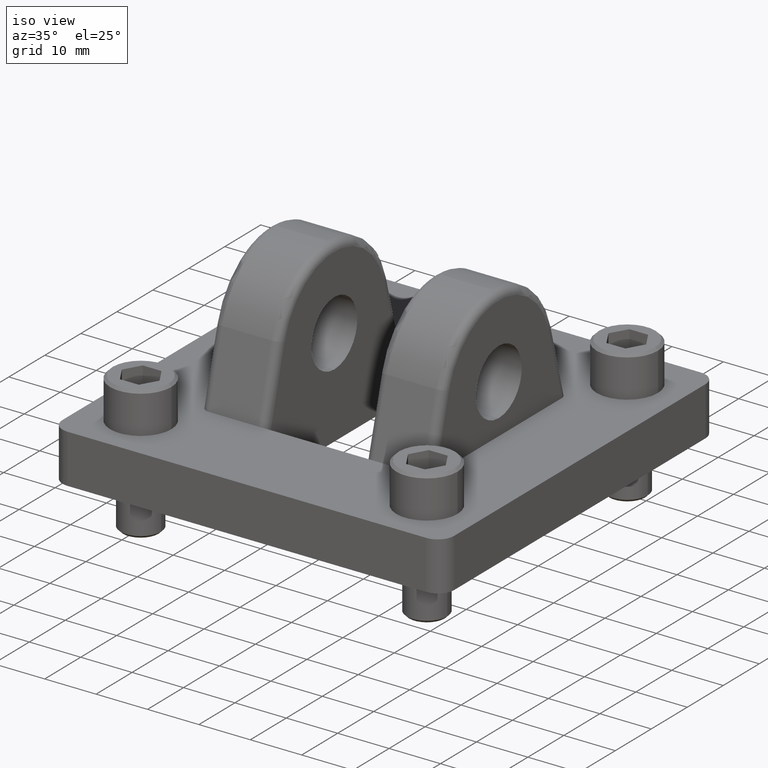
[diagram: clean part render]
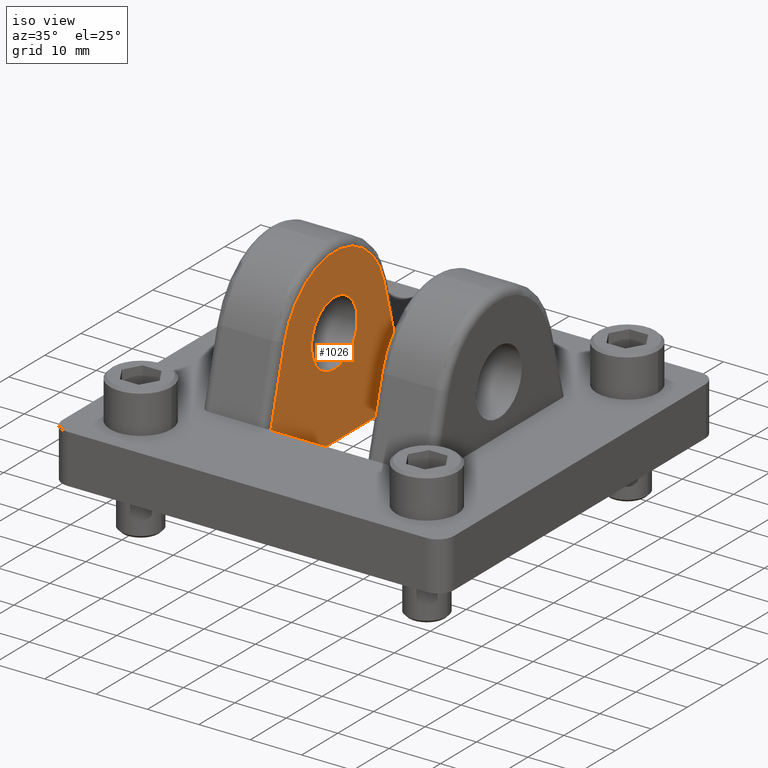
[diagram: same view with one face highlighted and labeled with its STEP entity id]
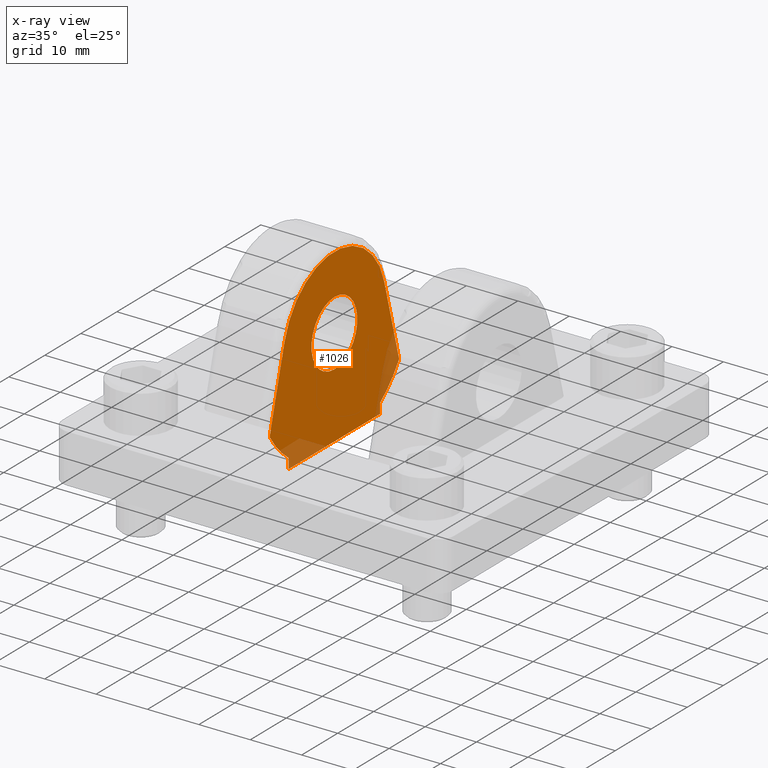
[diagram: x-ray of the same camera — body ghosted, the highlighted face saturated]
A machine part, iso view. The second image highlights one B-rep face of the part: STEP entity #1026.
The next image is the same camera in x-ray: the body ghosted, the highlighted face saturated — about 8% of this face is hidden behind the body in this view.
In plain terms, the highlighted planar face has unit normal (1, 0, 0).
Its self-contained STEP definition (entity closure, byte-faithful):
#41 = AXIS2_PLACEMENT_3D ( 'NONE', #1272, #1619, #3141 ) ;
#42 = ORIENTED_EDGE ( 'NONE', *, *, #1100, .T. ) ;
#190 = DIRECTION ( 'NONE',  ( 1.000000000000000000, 0.0000000000000000000, 0.0000000000000000000 ) ) ;
#228 = LINE ( 'NONE', #3538, #1303 ) ;
#330 = EDGE_CURVE ( 'NONE', #573, #2914, #2183, .T. ) ;
#333 = AXIS2_PLACEMENT_3D ( 'NONE', #1998, #566, #2821 ) ;
#382 = VERTEX_POINT ( 'NONE', #1976 ) ;
#424 = DIRECTION ( 'NONE',  ( 0.0000000000000000000, 0.0000000000000000000, -1.000000000000000000 ) ) ;
#444 = CIRCLE ( 'NONE', #333, 0.8385254915624211769 ) ;
#482 = ORIENTED_EDGE ( 'NONE', *, *, #2206, .F. ) ;
#566 = DIRECTION ( 'NONE',  ( 1.000000000000000000, 0.0000000000000000000, 0.0000000000000000000 ) ) ;
#573 = VERTEX_POINT ( 'NONE', #1749 ) ;
#610 = EDGE_LOOP ( 'NONE', ( #2784, #42, #1288, #1660, #3137, #2873, #1693, #1972 ) ) ;
#626 = CARTESIAN_POINT ( 'NONE',  ( -0.3799999999999999489, -0.5000000000000000000, 0.0000000000000000000 ) ) ;
#666 = CARTESIAN_POINT ( 'NONE',  ( -0.3799999999999999489, 0.7080409632690499722, 0.3007751183059469979 ) ) ;
#715 = DIRECTION ( 'NONE',  ( 0.0000000000000000000, -0.2629514606666107923, -0.9648090636666385445 ) ) ;
#726 = VECTOR ( 'NONE', #2264, 39.37007874015748143 ) ;
#737 = LINE ( 'NONE', #1875, #1728 ) ;
#764 = CARTESIAN_POINT ( 'NONE',  ( -0.3799999999999999489, -0.7080409632690498611, 0.3007751183059464428 ) ) ;
#840 = CARTESIAN_POINT ( 'NONE',  ( -0.3799999999999999489, -0.5000000000000000000, 0.07685439910818685216 ) ) ;
#970 = AXIS2_PLACEMENT_3D ( 'NONE', #1736, #2229, #3319 ) ;
#975 = VERTEX_POINT ( 'NONE', #1141 ) ;
#995 = CARTESIAN_POINT ( 'NONE',  ( -0.3799999999999998934, -1.024442997624098707E-16, 0.7499999999999998890 ) ) ;
#1026 = ADVANCED_FACE ( 'NONE', ( #1534, #2648 ), #3205, .T. ) ;
#1034 = DIRECTION ( 'NONE',  ( 1.000000000000000000, 0.0000000000000000000, 0.0000000000000000000 ) ) ;
#1055 = DIRECTION ( 'NONE',  ( 0.0000000000000000000, 0.0000000000000000000, 1.000000000000000000 ) ) ;
#1069 = CARTESIAN_POINT ( 'NONE',  ( -0.3799999999999998934, -1.024442997624098707E-16, 1.000499999999999945 ) ) ;
#1100 = EDGE_CURVE ( 'NONE', #1820, #2572, #737, .T. ) ;
#1141 = CARTESIAN_POINT ( 'NONE',  ( -0.3799999999999999489, 0.5000000000000001110, 0.07685439910818692155 ) ) ;
#1222 = VERTEX_POINT ( 'NONE', #1069 ) ;
#1240 = DIRECTION ( 'NONE',  ( -0.0000000000000000000, -0.0000000000000000000, -1.000000000000000000 ) ) ;
#1247 = CIRCLE ( 'NONE', #970, 0.5650000000000000577 ) ;
#1272 = CARTESIAN_POINT ( 'NONE',  ( -0.3799999999999998934, -1.024442997624098707E-16, 0.7499999999999998890 ) ) ;
#1288 = ORIENTED_EDGE ( 'NONE', *, *, #2734, .T. ) ;
#1298 = DIRECTION ( 'NONE',  ( 0.0000000000000000000, 0.0000000000000000000, -1.000000000000000000 ) ) ;
#1303 = VECTOR ( 'NONE', #715, 39.37007874015748854 ) ;
#1340 = CARTESIAN_POINT ( 'NONE',  ( -0.3799999999999999489, -1.024442997624098707E-16, 0.7499999999999998890 ) ) ;
#1369 = AXIS2_PLACEMENT_3D ( 'NONE', #1340, #190, #1298 ) ;
#1390 = CARTESIAN_POINT ( 'NONE',  ( -0.3799999999999999489, -0.5000000000000000000, 0.0000000000000000000 ) ) ;
#1448 = EDGE_CURVE ( 'NONE', #2914, #975, #2996, .T. ) ;
#1472 = CIRCLE ( 'NONE', #2878, 0.2504999999999999449 ) ;
#1525 = VERTEX_POINT ( 'NONE', #840 ) ;
#1534 = FACE_BOUND ( 'NONE', #1854, .T. ) ;
#1600 = AXIS2_PLACEMENT_3D ( 'NONE', #3236, #2078, #424 ) ;
#1619 = DIRECTION ( 'NONE',  ( 1.000000000000000000, 0.0000000000000000000, 0.0000000000000000000 ) ) ;
#1660 = ORIENTED_EDGE ( 'NONE', *, *, #1929, .T. ) ;
#1693 = ORIENTED_EDGE ( 'NONE', *, *, #330, .T. ) ;
#1728 = VECTOR ( 'NONE', #3457, 39.37007874015748854 ) ;
#1736 = CARTESIAN_POINT ( 'NONE',  ( -0.3799999999999999489, -1.024442997624098707E-16, 0.7499999999999998890 ) ) ;
#1749 = CARTESIAN_POINT ( 'NONE',  ( -0.3799999999999999489, -0.5000000000000000000, 0.0000000000000000000 ) ) ;
#1801 = EDGE_CURVE ( 'NONE', #1525, #573, #2621, .T. ) ;
#1820 = VERTEX_POINT ( 'NONE', #666 ) ;
#1854 = EDGE_LOOP ( 'NONE', ( #482, #3423 ) ) ;
#1868 = DIRECTION ( 'NONE',  ( 0.0000000000000000000, 0.0000000000000000000, -1.000000000000000000 ) ) ;
#1875 = CARTESIAN_POINT ( 'NONE',  ( -0.3799999999999999489, 0.5451171209716509924, 0.8985675752766350000 ) ) ;
#1902 = EDGE_CURVE ( 'NONE', #975, #1820, #2554, .T. ) ;
#1929 = EDGE_CURVE ( 'NONE', #3557, #2889, #228, .T. ) ;
#1972 = ORIENTED_EDGE ( 'NONE', *, *, #1448, .T. ) ;
#1976 = CARTESIAN_POINT ( 'NONE',  ( -0.3799999999999998934, -7.176689744376868531E-17, 0.4994999999999999440 ) ) ;
#1998 = CARTESIAN_POINT ( 'NONE',  ( -0.3799999999999999489, -1.024442997624098707E-16, 0.7499999999999998890 ) ) ;
#2078 = DIRECTION ( 'NONE',  ( 1.000000000000000000, 0.0000000000000000000, 0.0000000000000000000 ) ) ;
#2139 = VECTOR ( 'NONE', #1240, 39.37007874015748143 ) ;
#2183 = LINE ( 'NONE', #1390, #726 ) ;
#2206 = EDGE_CURVE ( 'NONE', #1222, #382, #1472, .T. ) ;
#2229 = DIRECTION ( 'NONE',  ( 1.000000000000000000, 0.0000000000000000000, 0.0000000000000000000 ) ) ;
#2230 = CARTESIAN_POINT ( 'NONE',  ( -0.3799999999999999489, 0.5451171209716507704, 0.8985675752766348889 ) ) ;
#2264 = DIRECTION ( 'NONE',  ( 0.0000000000000000000, 1.000000000000000000, 0.0000000000000000000 ) ) ;
#2370 = CARTESIAN_POINT ( 'NONE',  ( -0.3799999999999999489, 0.5000000000000000000, 0.0000000000000000000 ) ) ;
#2380 = CARTESIAN_POINT ( 'NONE',  ( -0.3799999999999999489, -0.5451171209716507704, 0.8985675752766348889 ) ) ;
#2554 = CIRCLE ( 'NONE', #1369, 0.8385254915624212879 ) ;
#2572 = VERTEX_POINT ( 'NONE', #2230 ) ;
#2621 = LINE ( 'NONE', #626, #2139 ) ;
#2648 = FACE_OUTER_BOUND ( 'NONE', #610, .T. ) ;
#2734 = EDGE_CURVE ( 'NONE', #2572, #3557, #1247, .T. ) ;
#2738 = EDGE_CURVE ( 'NONE', #2889, #1525, #444, .T. ) ;
#2784 = ORIENTED_EDGE ( 'NONE', *, *, #1902, .T. ) ;
#2821 = DIRECTION ( 'NONE',  ( 0.0000000000000000000, 0.0000000000000000000, -1.000000000000000000 ) ) ;
#2829 = VECTOR ( 'NONE', #1055, 39.37007874015748143 ) ;
#2873 = ORIENTED_EDGE ( 'NONE', *, *, #1801, .T. ) ;
#2878 = AXIS2_PLACEMENT_3D ( 'NONE', #995, #1034, #1868 ) ;
#2889 = VERTEX_POINT ( 'NONE', #764 ) ;
#2914 = VERTEX_POINT ( 'NONE', #2370 ) ;
#2996 = LINE ( 'NONE', #3263, #2829 ) ;
#3021 = EDGE_CURVE ( 'NONE', #382, #1222, #3414, .T. ) ;
#3137 = ORIENTED_EDGE ( 'NONE', *, *, #2738, .T. ) ;
#3141 = DIRECTION ( 'NONE',  ( 0.0000000000000000000, 0.0000000000000000000, -1.000000000000000000 ) ) ;
#3205 = PLANE ( 'NONE',  #1600 ) ;
#3236 = CARTESIAN_POINT ( 'NONE',  ( -0.3799999999999999489, -1.024442997624098707E-16, 0.7499999999999998890 ) ) ;
#3263 = CARTESIAN_POINT ( 'NONE',  ( -0.3799999999999999489, 0.5000000000000000000, 0.0000000000000000000 ) ) ;
#3319 = DIRECTION ( 'NONE',  ( 0.0000000000000000000, 0.0000000000000000000, -1.000000000000000000 ) ) ;
#3414 = CIRCLE ( 'NONE', #41, 0.2504999999999999449 ) ;
#3423 = ORIENTED_EDGE ( 'NONE', *, *, #3021, .F. ) ;
#3457 = DIRECTION ( 'NONE',  ( 0.0000000000000000000, -0.2629514606666110144, 0.9648090636666385445 ) ) ;
#3538 = CARTESIAN_POINT ( 'NONE',  ( -0.3799999999999999489, -0.5451171209716507704, 0.8985675752766350000 ) ) ;
#3557 = VERTEX_POINT ( 'NONE', #2380 ) ;